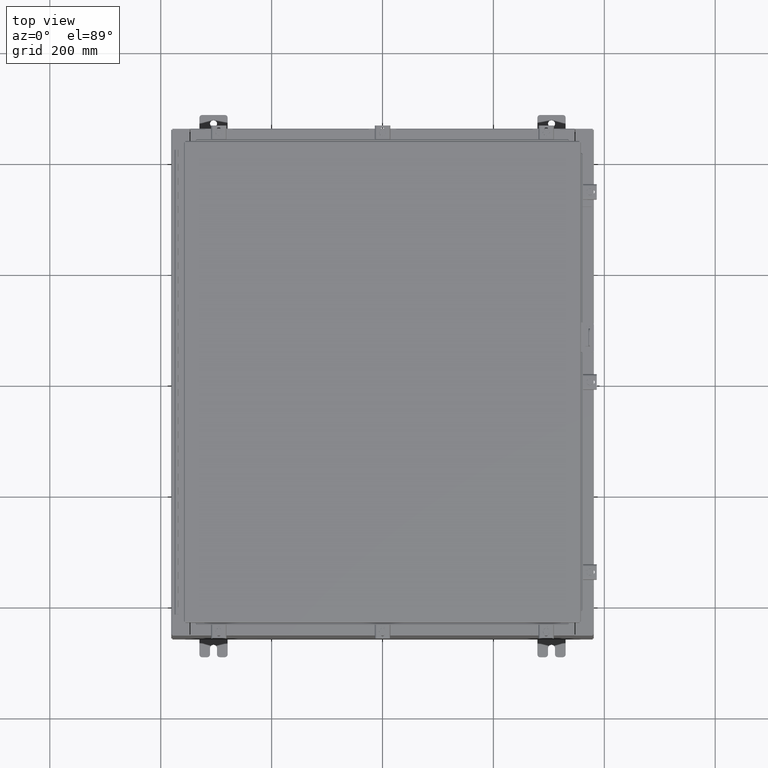
[diagram: clean part render]
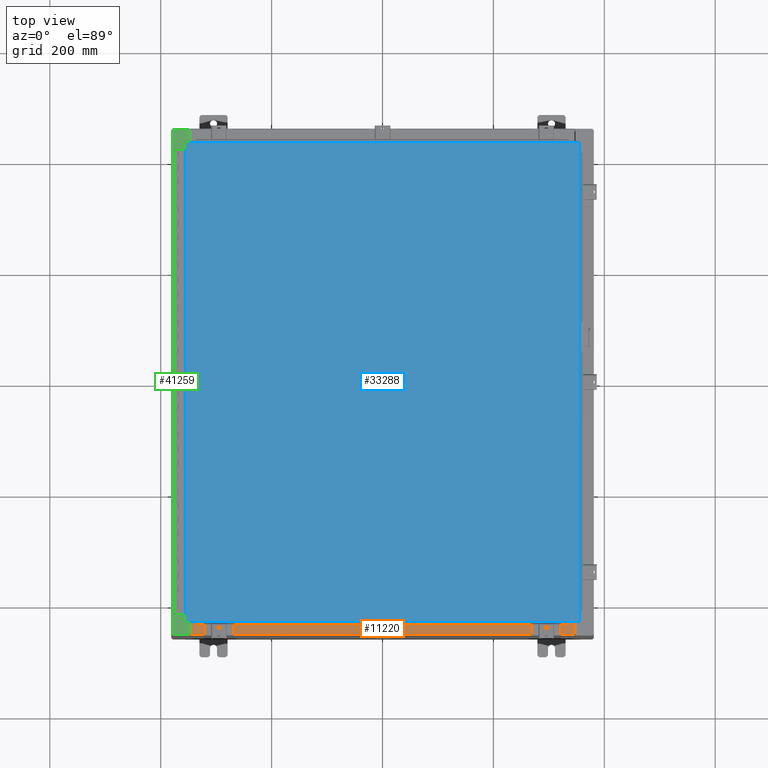
[diagram: same view with three faces highlighted in distinct colors, each labeled with its STEP entity id]
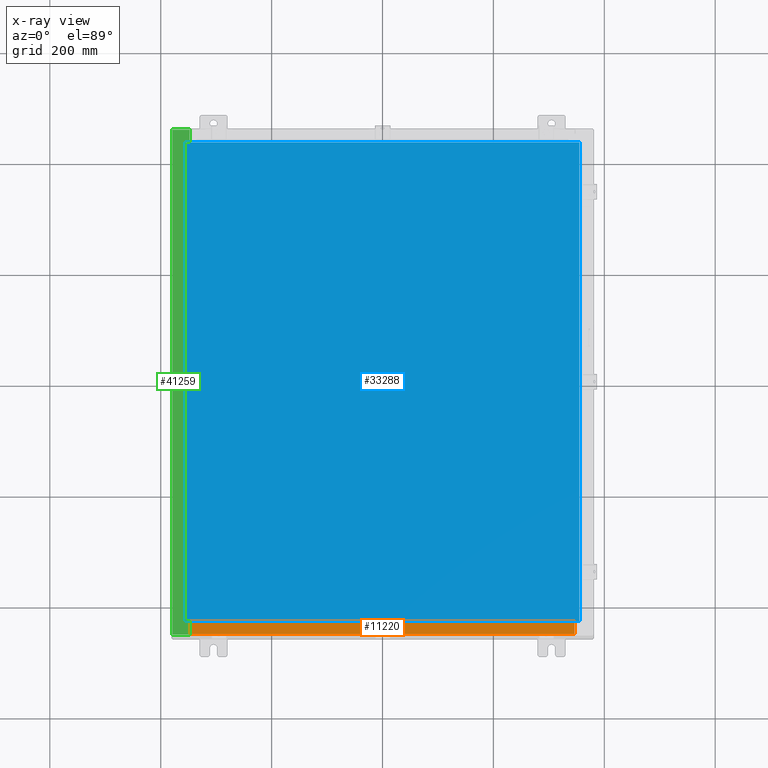
[diagram: x-ray of the same camera — body ghosted, the three highlighted faces saturated]
A machine part, top view with three faces highlighted in distinct colors.
The next image is the same camera in x-ray (body ghosted, the three faces saturated) — at least one of them is partly hidden behind the body in this view.
Their STEP definitions:

[orange] entity #11220 — the highlighted planar face has unit normal (-0, -0, 1).
#50 = DIRECTION ( 'NONE',  ( -2.688223102148497900E-016, -1.000000000000000000, 3.734140369554233100E-015 ) ) ;
#154 = DIRECTION ( 'NONE',  ( -1.000000000000000000, -2.688223102148527500E-016, -8.326672684688674100E-016 ) ) ;
#584 = EDGE_CURVE ( 'NONE', #21226, #1211, #23594, .T. ) ;
#1140 = VECTOR ( 'NONE', #50, 39.37007874015748100 ) ;
#1211 = VERTEX_POINT ( 'NONE', #20138 ) ;
#2706 = EDGE_CURVE ( 'NONE', #21226, #18434, #10103, .T. ) ;
#2875 = VERTEX_POINT ( 'NONE', #41372 ) ;
#6924 = CARTESIAN_POINT ( 'NONE',  ( 13.63720000000001400, -1.287300000000001200, 8.000000000000016000 ) ) ;
#8071 = EDGE_CURVE ( 'NONE', #18434, #2875, #43214, .T. ) ;
#8942 = CARTESIAN_POINT ( 'NONE',  ( 7.301855911053556700E-015, 2.841121913410833900E-014, 7.999999999999999100 ) ) ;
#9766 = ORIENTED_EDGE ( 'NONE', *, *, #2706, .F. ) ;
#10071 = CARTESIAN_POINT ( 'NONE',  ( 13.63720000000001400, -1.300299999999999300, 8.000000000000012400 ) ) ;
#10103 = LINE ( 'NONE', #10071, #1140 ) ;
#11220 = ADVANCED_FACE ( 'NONE', ( #13264 ), #29181, .T. ) ;
#12358 = DIRECTION ( 'NONE',  ( -2.688223102148497400E-016, -1.000000000000000000, 3.734140369554233100E-015 ) ) ;
#13264 = FACE_OUTER_BOUND ( 'NONE', #27193, .T. ) ;
#16299 = VECTOR ( 'NONE', #154, 39.37007874015748100 ) ;
#18434 = VERTEX_POINT ( 'NONE', #23496 ) ;
#20138 = CARTESIAN_POINT ( 'NONE',  ( -13.63719999999998800, -0.08770000000000026400, 7.999999999999987600 ) ) ;
#20360 = ORIENTED_EDGE ( 'NONE', *, *, #584, .T. ) ;
#21226 = VERTEX_POINT ( 'NONE', #24233 ) ;
#22058 = CARTESIAN_POINT ( 'NONE',  ( -13.63719999999998800, -0.07470000000000015500, 7.999999999999987600 ) ) ;
#22551 = VECTOR ( 'NONE', #32994, 39.37007874015748100 ) ;
#23496 = CARTESIAN_POINT ( 'NONE',  ( 13.63720000000001400, -1.287300000000001200, 8.000000000000012400 ) ) ;
#23594 = LINE ( 'NONE', #33137, #22551 ) ;
#23766 = ORIENTED_EDGE ( 'NONE', *, *, #8071, .F. ) ;
#23934 = VECTOR ( 'NONE', #42393, 39.37007874015748100 ) ;
#24233 = CARTESIAN_POINT ( 'NONE',  ( 13.63720000000001400, -0.08769999999999808500, 8.000000000000007100 ) ) ;
#27193 = EDGE_LOOP ( 'NONE', ( #40196, #23766, #9766, #20360 ) ) ;
#29181 = PLANE ( 'NONE',  #42038 ) ;
#32580 = DIRECTION ( 'NONE',  ( 9.127965616863684600E-016, 3.734140369554233100E-015, 1.000000000000000000 ) ) ;
#32994 = DIRECTION ( 'NONE',  ( -1.000000000000000000, -1.486283703886012000E-016, -7.525379752513667500E-016 ) ) ;
#33137 = CARTESIAN_POINT ( 'NONE',  ( 7.267739186089316900E-015, -0.08770000000000026400, 7.999999999999999100 ) ) ;
#34930 = EDGE_CURVE ( 'NONE', #2875, #1211, #35062, .T. ) ;
#35062 = LINE ( 'NONE', #22058, #23934 ) ;
#40196 = ORIENTED_EDGE ( 'NONE', *, *, #34930, .F. ) ;
#41372 = CARTESIAN_POINT ( 'NONE',  ( -13.63719999999998800, -1.287299999999999200, 7.999999999999992000 ) ) ;
#42038 = AXIS2_PLACEMENT_3D ( 'NONE', #8942, #32580, #12358 ) ;
#42393 = DIRECTION ( 'NONE',  ( 2.688223102148497900E-016, 1.000000000000000000, -3.734140369554233100E-015 ) ) ;
#43214 = LINE ( 'NONE', #6924, #16299 ) ;

[blue] entity #33288 — the highlighted planar face has unit normal (0, 0, -1).
#1557 = CARTESIAN_POINT ( 'NONE',  ( -13.99030000000000700, 17.00630000000000000, 0.0000000000000000000 ) ) ;
#1673 = ORIENTED_EDGE ( 'NONE', *, *, #26844, .T. ) ;
#2003 = VERTEX_POINT ( 'NONE', #14619 ) ;
#7045 = VERTEX_POINT ( 'NONE', #13104 ) ;
#8193 = DIRECTION ( 'NONE',  ( 0.0000000000000000000, -1.000000000000000000, 0.0000000000000000000 ) ) ;
#8487 = CARTESIAN_POINT ( 'NONE',  ( -13.99030000000000700, -17.00630000000000000, 0.0000000000000000000 ) ) ;
#8515 = ORIENTED_EDGE ( 'NONE', *, *, #19478, .T. ) ;
#9288 = LINE ( 'NONE', #42206, #36234 ) ;
#10144 = CARTESIAN_POINT ( 'NONE',  ( 13.99029999999999200, -17.00630000000000000, 0.0000000000000000000 ) ) ;
#11919 = DIRECTION ( 'NONE',  ( 1.000000000000000000, -0.0000000000000000000, -0.0000000000000000000 ) ) ;
#12987 = PLANE ( 'NONE',  #33433 ) ;
#13104 = CARTESIAN_POINT ( 'NONE',  ( 13.99029999999999200, 17.00630000000000300, -2.185478394931410600E-015 ) ) ;
#14085 = LINE ( 'NONE', #8487, #22047 ) ;
#14226 = CARTESIAN_POINT ( 'NONE',  ( -13.99030000000000700, -17.00630000000000000, 0.0000000000000000000 ) ) ;
#14619 = CARTESIAN_POINT ( 'NONE',  ( -13.99030000000000700, 17.00630000000000000, 0.0000000000000000000 ) ) ;
#16706 = FACE_OUTER_BOUND ( 'NONE', #32004, .T. ) ;
#19478 = EDGE_CURVE ( 'NONE', #7045, #2003, #41252, .T. ) ;
#19629 = CARTESIAN_POINT ( 'NONE',  ( 0.0000000000000000000, 0.0000000000000000000, 0.0000000000000000000 ) ) ;
#19786 = DIRECTION ( 'NONE',  ( 0.0000000000000000000, 0.0000000000000000000, -1.000000000000000000 ) ) ;
#22018 = DIRECTION ( 'NONE',  ( 0.0000000000000000000, 1.000000000000000000, 0.0000000000000000000 ) ) ;
#22047 = VECTOR ( 'NONE', #11919, 39.37007874015748100 ) ;
#22226 = EDGE_CURVE ( 'NONE', #28599, #35683, #14085, .T. ) ;
#22283 = VECTOR ( 'NONE', #40027, 39.37007874015748100 ) ;
#23226 = CARTESIAN_POINT ( 'NONE',  ( 13.99029999999999200, 17.00630000000000300, -2.185478394931410600E-015 ) ) ;
#26292 = LINE ( 'NONE', #1557, #33142 ) ;
#26844 = EDGE_CURVE ( 'NONE', #2003, #28599, #26292, .T. ) ;
#27691 = EDGE_CURVE ( 'NONE', #35683, #7045, #9288, .T. ) ;
#28599 = VERTEX_POINT ( 'NONE', #14226 ) ;
#32004 = EDGE_LOOP ( 'NONE', ( #42985, #37432, #8515, #1673 ) ) ;
#33142 = VECTOR ( 'NONE', #8193, 39.37007874015748100 ) ;
#33288 = ADVANCED_FACE ( 'NONE', ( #16706 ), #12987, .F. ) ;
#33433 = AXIS2_PLACEMENT_3D ( 'NONE', #19629, #19786, #43361 ) ;
#35683 = VERTEX_POINT ( 'NONE', #10144 ) ;
#36234 = VECTOR ( 'NONE', #22018, 39.37007874015748100 ) ;
#37432 = ORIENTED_EDGE ( 'NONE', *, *, #27691, .T. ) ;
#40027 = DIRECTION ( 'NONE',  ( -1.000000000000000000, -0.0000000000000000000, -0.0000000000000000000 ) ) ;
#41252 = LINE ( 'NONE', #23226, #22283 ) ;
#42206 = CARTESIAN_POINT ( 'NONE',  ( 13.99029999999999200, -17.00630000000000000, 0.0000000000000000000 ) ) ;
#42985 = ORIENTED_EDGE ( 'NONE', *, *, #22226, .T. ) ;
#43361 = DIRECTION ( 'NONE',  ( -1.000000000000000000, 0.0000000000000000000, -0.0000000000000000000 ) ) ;

[green] entity #41259 — the highlighted planar face has unit normal (0, 0, -1).
#120 = VECTOR ( 'NONE', #32354, 39.37007874015748100 ) ;
#684 = ORIENTED_EDGE ( 'NONE', *, *, #13525, .F. ) ;
#699 = EDGE_CURVE ( 'NONE', #18674, #19903, #29391, .T. ) ;
#1759 = CARTESIAN_POINT ( 'NONE',  ( -13.71270000000005900, -16.59375000000000000, 15.92530000000000500 ) ) ;
#1830 = CARTESIAN_POINT ( 'NONE',  ( -13.75005000000005700, 16.59375000000000000, 15.92530000000000400 ) ) ;
#2121 = EDGE_CURVE ( 'NONE', #13418, #13046, #3363, .T. ) ;
#2975 = LINE ( 'NONE', #8729, #10888 ) ;
#3363 = LINE ( 'NONE', #1759, #11311 ) ;
#3653 = DIRECTION ( 'NONE',  ( 4.219889424208582700E-031, 1.000000000000000000, 2.257460141711997900E-045 ) ) ;
#4546 = CARTESIAN_POINT ( 'NONE',  ( -13.69970000000005900, -17.92530000000000000, 15.92530000000000400 ) ) ;
#4976 = ORIENTED_EDGE ( 'NONE', *, *, #18783, .F. ) ;
#5047 = AXIS2_PLACEMENT_3D ( 'NONE', #11772, #35395, #15184 ) ;
#5169 = CARTESIAN_POINT ( 'NONE',  ( -13.69970000000005900, -16.63110000000000400, 15.92530000000000400 ) ) ;
#5176 = VECTOR ( 'NONE', #3653, 39.37007874015748100 ) ;
#5276 = CARTESIAN_POINT ( 'NONE',  ( -13.75005000000005700, -16.61242500000000200, 15.92530000000000500 ) ) ;
#5331 = CARTESIAN_POINT ( 'NONE',  ( -13.75005000000005700, 16.59375000000000000, 15.92530000000000500 ) ) ;
#7199 = DIRECTION ( 'NONE',  ( -0.0000000000000000000, 1.000000000000000000, -0.0000000000000000000 ) ) ;
#7521 = EDGE_CURVE ( 'NONE', #20189, #18476, #37451, .T. ) ;
#8406 = LINE ( 'NONE', #21746, #25343 ) ;
#8423 = DIRECTION ( 'NONE',  ( -1.000000000000000000, -1.087045829762337300E-031, -5.349571789159789300E-015 ) ) ;
#8688 = DIRECTION ( 'NONE',  ( 1.000000000000000000, 0.0000000000000000000, 0.0000000000000000000 ) ) ;
#8729 = CARTESIAN_POINT ( 'NONE',  ( -8.545434927015187700E-014, -17.92530000000000000, 15.92530000000007800 ) ) ;
#10149 = CARTESIAN_POINT ( 'NONE',  ( -13.69970000000005900, 16.63110000000000400, 15.92530000000000400 ) ) ;
#10592 = CARTESIAN_POINT ( 'NONE',  ( -14.91230000000005700, 17.92530000000000000, 15.92529999999999800 ) ) ;
#10855 = EDGE_CURVE ( 'NONE', #24437, #19903, #20176, .T. ) ;
#10888 = VECTOR ( 'NONE', #32773, 39.37007874015748100 ) ;
#11311 = VECTOR ( 'NONE', #15206, 39.37007874015748100 ) ;
#11772 = CARTESIAN_POINT ( 'NONE',  ( -13.75005000000005700, 16.61242500000000200, 15.92530000000000500 ) ) ;
#12011 = ORIENTED_EDGE ( 'NONE', *, *, #2121, .F. ) ;
#13046 = VERTEX_POINT ( 'NONE', #29388 ) ;
#13215 = CARTESIAN_POINT ( 'NONE',  ( -13.69970000000005900, 17.92530000000000000, 15.92530000000000400 ) ) ;
#13418 = VERTEX_POINT ( 'NONE', #27847 ) ;
#13525 = EDGE_CURVE ( 'NONE', #18476, #15940, #19561, .T. ) ;
#13584 = CARTESIAN_POINT ( 'NONE',  ( -13.75005000000005700, 16.63110000000000000, 15.92530000000000400 ) ) ;
#13598 = VECTOR ( 'NONE', #37855, 39.37007874015748100 ) ;
#13840 = VERTEX_POINT ( 'NONE', #20705 ) ;
#14066 = EDGE_CURVE ( 'NONE', #16703, #13840, #8406, .T. ) ;
#14124 = CIRCLE ( 'NONE', #28266, 0.01867499999999949400 ) ;
#15184 = DIRECTION ( 'NONE',  ( 1.000000000000000000, 0.0000000000000000000, 0.0000000000000000000 ) ) ;
#15206 = DIRECTION ( 'NONE',  ( -1.000000000000000000, 0.0000000000000000000, 0.0000000000000000000 ) ) ;
#15584 = CARTESIAN_POINT ( 'NONE',  ( -8.545434927015187700E-014, 0.0000000000000000000, 15.92530000000007800 ) ) ;
#15940 = VERTEX_POINT ( 'NONE', #1830 ) ;
#16703 = VERTEX_POINT ( 'NONE', #13215 ) ;
#17725 = ORIENTED_EDGE ( 'NONE', *, *, #41699, .F. ) ;
#18083 = LINE ( 'NONE', #5331, #120 ) ;
#18476 = VERTEX_POINT ( 'NONE', #13584 ) ;
#18674 = VERTEX_POINT ( 'NONE', #4546 ) ;
#18783 = EDGE_CURVE ( 'NONE', #13046, #24437, #14124, .T. ) ;
#19516 = VECTOR ( 'NONE', #22543, 39.37007874015748100 ) ;
#19561 = CIRCLE ( 'NONE', #5047, 0.01867499999999949400 ) ;
#19903 = VERTEX_POINT ( 'NONE', #5169 ) ;
#20176 = LINE ( 'NONE', #26699, #28084 ) ;
#20189 = VERTEX_POINT ( 'NONE', #10149 ) ;
#20705 = CARTESIAN_POINT ( 'NONE',  ( -14.91230000000005700, 17.92530000000000000, 15.92529999999999800 ) ) ;
#20747 = ORIENTED_EDGE ( 'NONE', *, *, #10855, .F. ) ;
#21422 = ORIENTED_EDGE ( 'NONE', *, *, #30133, .T. ) ;
#21746 = CARTESIAN_POINT ( 'NONE',  ( -8.545434927015187700E-014, 17.92530000000000000, 15.92530000000007800 ) ) ;
#21962 = CARTESIAN_POINT ( 'NONE',  ( -13.69970000000005900, 0.0000000000000000000, 15.92530000000000400 ) ) ;
#22092 = DIRECTION ( 'NONE',  ( 4.219889424208582700E-031, 1.000000000000000000, 2.257460141711997900E-045 ) ) ;
#22348 = DIRECTION ( 'NONE',  ( -1.000000000000000000, 0.0000000000000000000, -5.349571789159788500E-015 ) ) ;
#22413 = LINE ( 'NONE', #10592, #36114 ) ;
#22458 = ORIENTED_EDGE ( 'NONE', *, *, #23542, .F. ) ;
#22537 = ORIENTED_EDGE ( 'NONE', *, *, #699, .T. ) ;
#22543 = DIRECTION ( 'NONE',  ( -1.000000000000000000, -4.340572780400098900E-014, 0.0000000000000000000 ) ) ;
#23542 = EDGE_CURVE ( 'NONE', #37422, #13840, #22413, .T. ) ;
#23903 = CARTESIAN_POINT ( 'NONE',  ( -13.69970000000005900, 0.0000000000000000000, 15.92530000000000400 ) ) ;
#23929 = FACE_OUTER_BOUND ( 'NONE', #35154, .T. ) ;
#24437 = VERTEX_POINT ( 'NONE', #29591 ) ;
#25070 = CARTESIAN_POINT ( 'NONE',  ( -14.91230000000005700, -17.92530000000000000, 15.92529999999999800 ) ) ;
#25343 = VECTOR ( 'NONE', #8423, 39.37007874015748100 ) ;
#26699 = CARTESIAN_POINT ( 'NONE',  ( -13.75005000000005700, -16.63110000000000000, 15.92530000000000500 ) ) ;
#26722 = EDGE_CURVE ( 'NONE', #33933, #13418, #30512, .T. ) ;
#27847 = CARTESIAN_POINT ( 'NONE',  ( -13.71270000000005900, -16.59375000000000000, 15.92530000000000500 ) ) ;
#28084 = VECTOR ( 'NONE', #30086, 39.37007874015748100 ) ;
#28266 = AXIS2_PLACEMENT_3D ( 'NONE', #5276, #28914, #8688 ) ;
#28721 = ORIENTED_EDGE ( 'NONE', *, *, #26722, .F. ) ;
#28914 = DIRECTION ( 'NONE',  ( -5.349571789159788500E-015, -0.0000000000000000000, 1.000000000000000000 ) ) ;
#29388 = CARTESIAN_POINT ( 'NONE',  ( -13.75005000000005700, -16.59375000000000000, 15.92530000000000400 ) ) ;
#29391 = LINE ( 'NONE', #21962, #36258 ) ;
#29591 = CARTESIAN_POINT ( 'NONE',  ( -13.75005000000005700, -16.63110000000000000, 15.92530000000000400 ) ) ;
#30086 = DIRECTION ( 'NONE',  ( 1.000000000000000000, -4.340572780400098900E-014, 0.0000000000000000000 ) ) ;
#30133 = EDGE_CURVE ( 'NONE', #20189, #16703, #43208, .T. ) ;
#30512 = LINE ( 'NONE', #34465, #13598 ) ;
#31166 = EDGE_CURVE ( 'NONE', #37422, #18674, #2975, .T. ) ;
#32354 = DIRECTION ( 'NONE',  ( 1.000000000000000000, 0.0000000000000000000, 0.0000000000000000000 ) ) ;
#32773 = DIRECTION ( 'NONE',  ( 1.000000000000000000, -4.861730685829018000E-063, 5.349571789159789300E-015 ) ) ;
#32830 = ORIENTED_EDGE ( 'NONE', *, *, #14066, .T. ) ;
#33933 = VERTEX_POINT ( 'NONE', #40807 ) ;
#34465 = CARTESIAN_POINT ( 'NONE',  ( -13.71270000000005900, 16.59375000000000000, 15.92530000000000500 ) ) ;
#35154 = EDGE_LOOP ( 'NONE', ( #43474, #21422, #32830, #22458, #35462, #22537, #20747, #4976, #12011, #28721, #17725, #684 ) ) ;
#35395 = DIRECTION ( 'NONE',  ( -5.349571789159788500E-015, -0.0000000000000000000, 1.000000000000000000 ) ) ;
#35462 = ORIENTED_EDGE ( 'NONE', *, *, #31166, .T. ) ;
#35941 = CARTESIAN_POINT ( 'NONE',  ( -13.69970000000005900, 16.63110000000000400, 15.92530000000000500 ) ) ;
#36114 = VECTOR ( 'NONE', #7199, 39.37007874015748100 ) ;
#36258 = VECTOR ( 'NONE', #22092, 39.37007874015748100 ) ;
#37422 = VERTEX_POINT ( 'NONE', #25070 ) ;
#37451 = LINE ( 'NONE', #35941, #19516 ) ;
#37855 = DIRECTION ( 'NONE',  ( -0.0000000000000000000, -1.000000000000000000, -0.0000000000000000000 ) ) ;
#39159 = PLANE ( 'NONE',  #39242 ) ;
#39242 = AXIS2_PLACEMENT_3D ( 'NONE', #15584, #42558, #22348 ) ;
#40807 = CARTESIAN_POINT ( 'NONE',  ( -13.71270000000005900, 16.59375000000000000, 15.92530000000000500 ) ) ;
#41259 = ADVANCED_FACE ( 'NONE', ( #23929 ), #39159, .F. ) ;
#41699 = EDGE_CURVE ( 'NONE', #15940, #33933, #18083, .T. ) ;
#42558 = DIRECTION ( 'NONE',  ( 5.349571789159788500E-015, 0.0000000000000000000, -1.000000000000000000 ) ) ;
#43208 = LINE ( 'NONE', #23903, #5176 ) ;
#43474 = ORIENTED_EDGE ( 'NONE', *, *, #7521, .F. ) ;